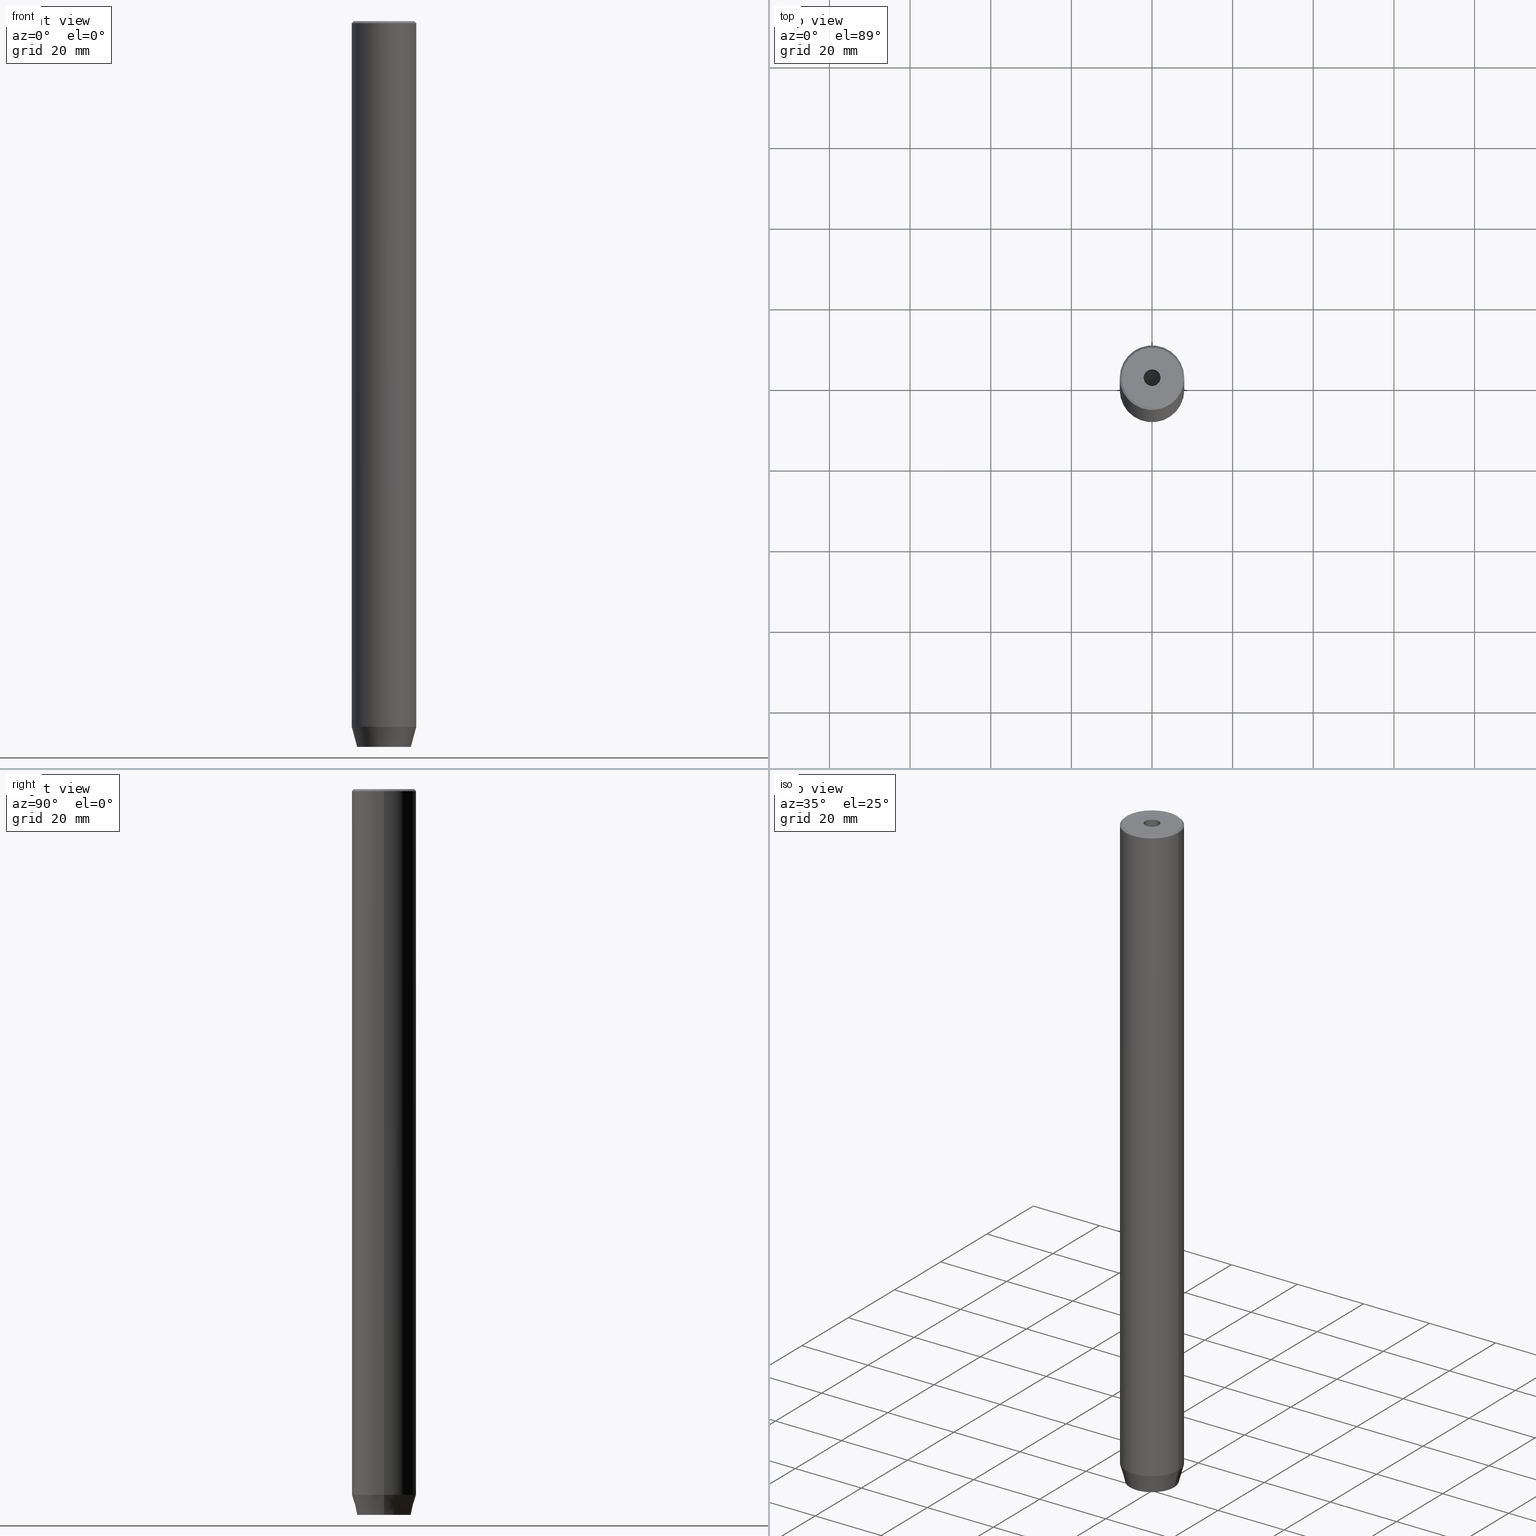
[diagram: canonical four-view strip — front | top / right | iso, engineering-drawing reading convention]
A machine part, canonical four-view strip (front | top / right | iso — engineering-drawing reading convention). The complete STEP part file that produces these views, byte-faithful:
ISO-10303-21;
HEADER;
FILE_DESCRIPTION (( 'STEP AP203' ),
    '1' );
FILE_NAME ('db60.STEP',
    '2024-01-02T20:38:27',
    ( '' ),
    ( '' ),
    'SwSTEP 2.0',
    'SolidWorks 2019',
    '' );
FILE_SCHEMA (( 'CONFIG_CONTROL_DESIGN' ));
ENDSEC;

DATA;
#1 = ORIENTED_EDGE ( 'NONE', *, *, #537, .T. ) ;
#2 = VERTEX_POINT ( 'NONE', #137 ) ;
#3 = DIRECTION ( 'NONE',  ( -0.2588190451025213501, 3.169619151431772337E-17, 0.9659258262890680902 ) ) ;
#4 = AXIS2_PLACEMENT_3D ( 'NONE', #390, #219, #258 ) ;
#5 = CC_DESIGN_PERSON_AND_ORGANIZATION_ASSIGNMENT ( #473, #478, ( #338 ) ) ;
#6 = CONICAL_SURFACE ( 'NONE', #482, 2.099999999999996092, 1.029744258676652091 ) ;
#7 = ORIENTED_EDGE ( 'NONE', *, *, #269, .T. ) ;
#8 = PLANE ( 'NONE',  #431 ) ;
#9 = CC_DESIGN_APPROVAL ( #287, ( #388 ) ) ;
#10 = CC_DESIGN_APPROVAL ( #450, ( #338 ) ) ;
#11 = DIRECTION ( 'NONE',  ( 1.000000000000000000, 0.000000000000000000, 0.000000000000000000 ) ) ;
#12 = ADVANCED_FACE ( 'NONE', ( #502 ), #364, .F. ) ;
#13 = ADVANCED_FACE ( 'NONE', ( #355 ), #20, .T. ) ;
#14 = ORIENTED_EDGE ( 'NONE', *, *, #191, .F. ) ;
#15 = ORIENTED_EDGE ( 'NONE', *, *, #537, .F. ) ;
#16 = DIRECTION ( 'NONE',  ( 0.000000000000000000, 0.000000000000000000, 1.000000000000000000 ) ) ;
#17 = CLOSED_SHELL ( 'NONE', ( #158, #414, #119, #506, #13, #222, #95, #371, #296, #146, #558, #303, #12, #41, #488, #517, #121, #351, #176 ) ) ;
#18 = VECTOR ( 'NONE', #236, 1000.000000000000000 ) ;
#19 = CONICAL_SURFACE ( 'NONE', #448, 8.000000000000000000, 0.2617993877991500740 ) ;
#20 = CYLINDRICAL_SURFACE ( 'NONE', #223, 8.000000000000000000 ) ;
#21 = VECTOR ( 'NONE', #337, 1000.000000000000000 ) ;
#22 = CARTESIAN_POINT ( 'NONE',  ( 3.000000000000000000, -1.732050807568876527, -180.0000000000000000 ) ) ;
#23 = ORIENTED_EDGE ( 'NONE', *, *, #566, .T. ) ;
#24 = LINE ( 'NONE', #379, #253 ) ;
#25 = CARTESIAN_POINT ( 'NONE',  ( -3.000000000000000888, 1.732050807568876527, -177.1999999999999886 ) ) ;
#26 = VERTEX_POINT ( 'NONE', #321 ) ;
#27 = DIRECTION ( 'NONE',  ( -1.000000000000000000, 0.000000000000000000, 0.000000000000000000 ) ) ;
#28 = ORIENTED_EDGE ( 'NONE', *, *, #245, .F. ) ;
#29 = VECTOR ( 'NONE', #100, 1000.000000000000000 ) ;
#30 = APPROVAL_PERSON_ORGANIZATION ( #471, #450, #304 ) ;
#31 = DIRECTION ( 'NONE',  ( 0.8571673007021111124, 0.000000000000000000, 0.5150380749100562650 ) ) ;
#32 = CARTESIAN_POINT ( 'NONE',  ( 1.500000000000000222, -2.598076211353315568, -180.0000000000000000 ) ) ;
#33 = CARTESIAN_POINT ( 'NONE',  ( -1.084202172485504434E-16, 3.464101615137754830, -177.1999999999999886 ) ) ;
#34 = EDGE_CURVE ( 'NONE', #434, #362, #504, .T. ) ;
#35 = LINE ( 'NONE', #410, #575 ) ;
#36 = ORIENTED_EDGE ( 'NONE', *, *, #577, .T. ) ;
#37 = CYLINDRICAL_SURFACE ( 'NONE', #354, 2.099999999999997424 ) ;
#38 = PERSON_AND_ORGANIZATION ( #266, #212 ) ;
#39 = EDGE_CURVE ( 'NONE', #92, #523, #436, .T. ) ;
#40 = FACE_BOUND ( 'NONE', #487, .T. ) ;
#41 = ADVANCED_FACE ( 'NONE', ( #324 ), #281, .F. ) ;
#42 = VERTEX_POINT ( 'NONE', #180 ) ;
#43 = APPROVAL_DATE_TIME ( #126, #450 ) ;
#44 = DIRECTION ( 'NONE',  ( 1.000000000000000000, 0.000000000000000000, 0.000000000000000000 ) ) ;
#45 = APPROVAL ( #522, 'NEUR�EN�' ) ;
#46 = VECTOR ( 'NONE', #90, 1000.000000000000000 ) ;
#47 = DIRECTION ( 'NONE',  ( -0.000000000000000000, -0.000000000000000000, 1.000000000000000000 ) ) ;
#48 = CARTESIAN_POINT ( 'NONE',  ( -3.000000000000000000, -1.732050807568877859, -177.1999999999999886 ) ) ;
#49 = DIRECTION ( 'NONE',  ( 1.000000000000000000, 0.000000000000000000, 0.000000000000000000 ) ) ;
#50 = ORIENTED_EDGE ( 'NONE', *, *, #343, .F. ) ;
#51 = CARTESIAN_POINT ( 'NONE',  ( 0.000000000000000000, 0.000000000000000000, -180.0000000000000000 ) ) ;
#52 = CIRCLE ( 'NONE', #77, 2.099999999999996092 ) ;
#53 = CARTESIAN_POINT ( 'NONE',  ( 0.000000000000000000, 0.000000000000000000, -180.0000000000000000 ) ) ;
#54 = EDGE_CURVE ( 'NONE', #544, #58, #417, .T. ) ;
#55 = EDGE_CURVE ( 'NONE', #407, #511, #231, .T. ) ;
#56 = ORIENTED_EDGE ( 'NONE', *, *, #540, .F. ) ;
#57 = APPLICATION_PROTOCOL_DEFINITION ( 'international standard', 'config_control_design', 1994, #519 ) ;
#58 = VERTEX_POINT ( 'NONE', #520 ) ;
#59 = EDGE_LOOP ( 'NONE', ( #243, #440 ) ) ;
#60 = DIRECTION ( 'NONE',  ( -0.8660254037844387076, -0.4999999999999999445, 0.000000000000000000 ) ) ;
#61 = VECTOR ( 'NONE', #353, 1000.000000000000114 ) ;
#62 = DIRECTION ( 'NONE',  ( 0.5000000000000001110, -0.8660254037844385966, 0.000000000000000000 ) ) ;
#63 = VERTEX_POINT ( 'NONE', #124 ) ;
#64 = CARTESIAN_POINT ( 'NONE',  ( 1.500000000000000222, 2.598076211353315568, -177.1999999999999886 ) ) ;
#65 = ORIENTED_EDGE ( 'NONE', *, *, #445, .F. ) ;
#66 = UNCERTAINTY_MEASURE_WITH_UNIT (LENGTH_MEASURE( 1.000000000000000082E-05 ), #241, 'distance_accuracy_value', 'NONE');
#67 = APPROVAL_PERSON_ORGANIZATION ( #38, #287, #129 ) ;
#68 = DIRECTION ( 'NONE',  ( -2.503857664561932376E-16, 1.000000000000000000, 0.000000000000000000 ) ) ;
#69 = ORIENTED_EDGE ( 'NONE', *, *, #157, .F. ) ;
#70 = DIRECTION ( 'NONE',  ( 1.000000000000000000, 0.000000000000000000, 0.000000000000000000 ) ) ;
#71 = DIRECTION ( 'NONE',  ( 0.5000000000000001110, 0.8660254037844385966, -0.000000000000000000 ) ) ;
#72 = EDGE_LOOP ( 'NONE', ( #512, #278, #571, #294 ) ) ;
#73 = AXIS2_PLACEMENT_3D ( 'NONE', #542, #586, #138 ) ;
#74 = CARTESIAN_POINT ( 'NONE',  ( 0.000000000000000000, 0.000000000000000000, -0.4999999999999657496 ) ) ;
#75 = COORDINATED_UNIVERSAL_TIME_OFFSET ( 1, 0, .AHEAD. ) ;
#76 = DIRECTION ( 'NONE',  ( 0.8660254037844385966, -0.5000000000000001110, 0.000000000000000000 ) ) ;
#77 = AXIS2_PLACEMENT_3D ( 'NONE', #497, #177, #11 ) ;
#78 = CC_DESIGN_PERSON_AND_ORGANIZATION_ASSIGNMENT ( #437, #206, ( #388 ) ) ;
#79 = PERSON_AND_ORGANIZATION_ROLE ( 'classification_officer' ) ;
#80 = EDGE_LOOP ( 'NONE', ( #115, #289, #322, #405 ) ) ;
#81 = FACE_OUTER_BOUND ( 'NONE', #427, .T. ) ;
#82 = LINE ( 'NONE', #263, #123 ) ;
#83 = CARTESIAN_POINT ( 'NONE',  ( -1.499999999999999556, 2.598076211353316012, -180.0000000000000000 ) ) ;
#84 = APPROVAL_STATUS ( 'not_yet_approved' ) ;
#85 = EDGE_CURVE ( 'NONE', #26, #299, #149, .T. ) ;
#86 = CARTESIAN_POINT ( 'NONE',  ( 1.500000000000000222, 2.598076211353315568, -180.0000000000000000 ) ) ;
#87 = CARTESIAN_POINT ( 'NONE',  ( -6.660254037844381969, 8.976816591066591237E-16, -180.0000000000000000 ) ) ;
#88 = COORDINATED_UNIVERSAL_TIME_OFFSET ( 1, 0, .AHEAD. ) ;
#89 = VERTEX_POINT ( 'NONE', #87 ) ;
#90 = DIRECTION ( 'NONE',  ( 0.000000000000000000, -1.000000000000000000, 0.000000000000000000 ) ) ;
#91 = DIRECTION ( 'NONE',  ( 0.8660254037844385966, -0.5000000000000001110, 0.000000000000000000 ) ) ;
#92 = VERTEX_POINT ( 'NONE', #216 ) ;
#93 = ORIENTED_EDGE ( 'NONE', *, *, #406, .F. ) ;
#94 = CARTESIAN_POINT ( 'NONE',  ( -8.000000000000000000, 9.797174393178825657E-16, -175.0000000000000000 ) ) ;
#95 = ADVANCED_FACE ( 'NONE', ( #509, #291 ), #562, .T. ) ;
#96 = LINE ( 'NONE', #230, #480 ) ;
#97 = EDGE_LOOP ( 'NONE', ( #401, #99, #288, #550 ) ) ;
#98 = ORIENTED_EDGE ( 'NONE', *, *, #343, .T. ) ;
#99 = ORIENTED_EDGE ( 'NONE', *, *, #85, .F. ) ;
#100 = DIRECTION ( 'NONE',  ( -0.000000000000000000, -0.000000000000000000, -1.000000000000000000 ) ) ;
#101 = ORIENTED_EDGE ( 'NONE', *, *, #467, .T. ) ;
#102 = EDGE_CURVE ( 'NONE', #110, #434, #244, .T. ) ;
#103 = DIRECTION ( 'NONE',  ( 0.7071067811865474617, 8.659560562354932858E-17, -0.7071067811865474617 ) ) ;
#104 = EDGE_CURVE ( 'NONE', #42, #26, #248, .T. ) ;
#105 = VECTOR ( 'NONE', #156, 1000.000000000000000 ) ;
#106 = VERTEX_POINT ( 'NONE', #325 ) ;
#107 =( NAMED_UNIT ( * ) PLANE_ANGLE_UNIT ( ) SI_UNIT ( $, .RADIAN. ) );
#108 = AXIS2_PLACEMENT_3D ( 'NONE', #505, #192, #331 ) ;
#109 = DIRECTION ( 'NONE',  ( 1.000000000000000000, 0.000000000000000000, 0.000000000000000000 ) ) ;
#110 = VERTEX_POINT ( 'NONE', #526 ) ;
#111 = DIRECTION ( 'NONE',  ( -0.000000000000000000, -0.000000000000000000, 1.000000000000000000 ) ) ;
#112 = AXIS2_PLACEMENT_3D ( 'NONE', #130, #210, #27 ) ;
#113 = EDGE_LOOP ( 'NONE', ( #285, #345, #508, #260 ) ) ;
#114 = PLANE ( 'NONE',  #190 ) ;
#115 = ORIENTED_EDGE ( 'NONE', *, *, #54, .T. ) ;
#116 = VECTOR ( 'NONE', #68, 1000.000000000000000 ) ;
#117 = LINE ( 'NONE', #381, #116 ) ;
#118 = CARTESIAN_POINT ( 'NONE',  ( 2.099999999999996092, 0.000000000000000000, -20.00000000000000000 ) ) ;
#119 = ADVANCED_FACE ( 'NONE', ( #249 ), #555, .T. ) ;
#120 = DIRECTION ( 'NONE',  ( -0.000000000000000000, -0.000000000000000000, -1.000000000000000000 ) ) ;
#121 = ADVANCED_FACE ( 'NONE', ( #200 ), #570, .T. ) ;
#122 = VECTOR ( 'NONE', #536, 999.9999999999998863 ) ;
#123 = VECTOR ( 'NONE', #133, 999.9999999999998863 ) ;
#124 = CARTESIAN_POINT ( 'NONE',  ( 2.099999999999998757, 0.000000000000000000, -1.990051048614449116E-16 ) ) ;
#125 = ORIENTED_EDGE ( 'NONE', *, *, #445, .T. ) ;
#126 = DATE_AND_TIME ( #214, #527 ) ;
#127 = EDGE_LOOP ( 'NONE', ( #7, #564, #494, #378 ) ) ;
#128 = CARTESIAN_POINT ( 'NONE',  ( -2.168404344971008868E-16, -3.464101615137754830, -177.1999999999999886 ) ) ;
#129 = APPROVAL_ROLE ( '' ) ;
#130 = CARTESIAN_POINT ( 'NONE',  ( 0.000000000000000000, 0.000000000000000000, 0.000000000000000000 ) ) ;
#131 = CARTESIAN_POINT ( 'NONE',  ( 0.000000000000000000, 0.000000000000000000, 0.000000000000000000 ) ) ;
#132 = CALENDAR_DATE ( 2024, 2, 1 ) ;
#133 = DIRECTION ( 'NONE',  ( 0.8660254037844387076, 0.4999999999999999445, 0.000000000000000000 ) ) ;
#134 = APPLICATION_CONTEXT ( 'configuration controlled 3d designs of mechanical parts and assemblies' ) ;
#135 = FACE_OUTER_BOUND ( 'NONE', #72, .T. ) ;
#136 = DIRECTION ( 'NONE',  ( -0.000000000000000000, -0.000000000000000000, -1.000000000000000000 ) ) ;
#137 = CARTESIAN_POINT ( 'NONE',  ( 3.000000000000000000, 1.732050807568876527, -180.0000000000000000 ) ) ;
#138 = DIRECTION ( 'NONE',  ( 1.000000000000000000, 0.000000000000000000, 0.000000000000000000 ) ) ;
#139 = EDGE_CURVE ( 'NONE', #319, #547, #470, .T. ) ;
#140 = CONICAL_SURFACE ( 'NONE', #464, 7.500000000000034639, 0.7853981633974482790 ) ;
#141 = AXIS2_PLACEMENT_3D ( 'NONE', #479, #584, #207 ) ;
#142 = CARTESIAN_POINT ( 'NONE',  ( 3.000000000000000000, 0.000000000000000000, -177.1999999999999886 ) ) ;
#143 = PRODUCT_RELATED_PRODUCT_CATEGORY ( 'detail', '', ( #213 ) ) ;
#144 = ORIENTED_EDGE ( 'NONE', *, *, #240, .F. ) ;
#145 = DIRECTION ( 'NONE',  ( -0.000000000000000000, -0.000000000000000000, -1.000000000000000000 ) ) ;
#146 = ADVANCED_FACE ( 'NONE', ( #155 ), #140, .T. ) ;
#147 = EDGE_CURVE ( 'NONE', #92, #407, #339, .T. ) ;
#148 = DIRECTION ( 'NONE',  ( 1.000000000000000000, 0.000000000000000000, 0.000000000000000000 ) ) ;
#149 = CIRCLE ( 'NONE', #308, 2.099999999999996092 ) ;
#150 = FACE_OUTER_BOUND ( 'NONE', #127, .T. ) ;
#151 = PLANE ( 'NONE',  #419 ) ;
#152 = ORIENTED_EDGE ( 'NONE', *, *, #583, .F. ) ;
#153 = DESIGN_CONTEXT ( 'detailed design', #134, 'design' ) ;
#154 = CARTESIAN_POINT ( 'NONE',  ( 0.000000000000000000, 0.000000000000000000, 0.000000000000000000 ) ) ;
#155 = FACE_OUTER_BOUND ( 'NONE', #529, .T. ) ;
#156 = DIRECTION ( 'NONE',  ( -0.8660254037844385966, -0.5000000000000001110, 0.000000000000000000 ) ) ;
#157 = EDGE_CURVE ( 'NONE', #63, #366, #208, .T. ) ;
#158 = ADVANCED_FACE ( 'NONE', ( #81 ), #37, .F. ) ;
#159 = VERTEX_POINT ( 'NONE', #33 ) ;
#160 = PERSON_AND_ORGANIZATION_ROLE ( 'design_owner' ) ;
#161 = DIRECTION ( 'NONE',  ( -1.000000000000000000, -2.503857664561933362E-16, 0.000000000000000000 ) ) ;
#162 = VECTOR ( 'NONE', #268, 1000.000000000000000 ) ;
#163 = DATE_AND_TIME ( #525, #264 ) ;
#164 = FACE_OUTER_BOUND ( 'NONE', #239, .T. ) ;
#165 = VECTOR ( 'NONE', #459, 1000.000000000000000 ) ;
#166 = CARTESIAN_POINT ( 'NONE',  ( 8.000000000000000000, 0.000000000000000000, 0.000000000000000000 ) ) ;
#167 = DIRECTION ( 'NONE',  ( -0.000000000000000000, -0.000000000000000000, 1.000000000000000000 ) ) ;
#168 = COORDINATED_UNIVERSAL_TIME_OFFSET ( 1, 0, .AHEAD. ) ;
#169 = ORIENTED_EDGE ( 'NONE', *, *, #54, .F. ) ;
#170 = DIRECTION ( 'NONE',  ( 1.000000000000000000, 0.000000000000000000, 0.000000000000000000 ) ) ;
#171 = AXIS2_PLACEMENT_3D ( 'NONE', #74, #194, #202 ) ;
#172 = AXIS2_PLACEMENT_3D ( 'NONE', #344, #252, #211 ) ;
#173 = ORIENTED_EDGE ( 'NONE', *, *, #147, .T. ) ;
#174 = LINE ( 'NONE', #395, #444 ) ;
#175 = CIRCLE ( 'NONE', #108, 2.099999999999998757 ) ;
#176 = ADVANCED_FACE ( 'NONE', ( #472 ), #580, .F. ) ;
#177 = DIRECTION ( 'NONE',  ( -0.000000000000000000, -0.000000000000000000, 1.000000000000000000 ) ) ;
#178 = ORIENTED_EDGE ( 'NONE', *, *, #370, .T. ) ;
#179 = FACE_OUTER_BOUND ( 'NONE', #409, .T. ) ;
#180 = CARTESIAN_POINT ( 'NONE',  ( -5.207640850796248781E-15, 0.000000000000000000, -21.26180729995787999 ) ) ;
#181 = AXIS2_PLACEMENT_3D ( 'NONE', #556, #422, #209 ) ;
#182 = VECTOR ( 'NONE', #302, 1000.000000000000000 ) ;
#183 = CARTESIAN_POINT ( 'NONE',  ( 3.000000000000000000, -1.732050807568876527, -177.1999999999999886 ) ) ;
#184 = EDGE_CURVE ( 'NONE', #416, #446, #433, .T. ) ;
#185 = DIRECTION ( 'NONE',  ( -0.000000000000000000, 0.000000000000000000, -1.000000000000000000 ) ) ;
#186 = CARTESIAN_POINT ( 'NONE',  ( -2.168404344971008868E-16, 3.464101615137754830, -180.0000000000000000 ) ) ;
#187 = DIRECTION ( 'NONE',  ( -0.000000000000000000, -0.000000000000000000, 1.000000000000000000 ) ) ;
#188 = ORIENTED_EDGE ( 'NONE', *, *, #184, .F. ) ;
#189 = ORIENTED_EDGE ( 'NONE', *, *, #310, .T. ) ;
#190 = AXIS2_PLACEMENT_3D ( 'NONE', #64, #71, #468 ) ;
#191 = EDGE_CURVE ( 'NONE', #110, #159, #82, .T. ) ;
#192 = DIRECTION ( 'NONE',  ( -0.000000000000000000, -0.000000000000000000, 1.000000000000000000 ) ) ;
#193 = ORIENTED_EDGE ( 'NONE', *, *, #332, .T. ) ;
#194 = DIRECTION ( 'NONE',  ( 0.000000000000000000, 0.000000000000000000, -1.000000000000000000 ) ) ;
#195 = AXIS2_PLACEMENT_3D ( 'NONE', #313, #403, #220 ) ;
#196 = AXIS2_PLACEMENT_3D ( 'NONE', #51, #453, #49 ) ;
#197 = EDGE_CURVE ( 'NONE', #547, #319, #292, .T. ) ;
#198 = EDGE_CURVE ( 'NONE', #523, #92, #411, .T. ) ;
#199 = VECTOR ( 'NONE', #91, 1000.000000000000000 ) ;
#200 = FACE_OUTER_BOUND ( 'NONE', #474, .T. ) ;
#201 = LOCAL_TIME ( 21, 38, 27.00000000000000000, #88 ) ;
#202 = DIRECTION ( 'NONE',  ( 1.000000000000000000, 0.000000000000000000, 0.000000000000000000 ) ) ;
#203 = PERSON_AND_ORGANIZATION_ROLE ( 'creator' ) ;
#204 = DIRECTION ( 'NONE',  ( 0.000000000000000000, 0.000000000000000000, -1.000000000000000000 ) ) ;
#205 = EDGE_LOOP ( 'NONE', ( #69, #548 ) ) ;
#206 = PERSON_AND_ORGANIZATION_ROLE ( 'creator' ) ;
#207 = DIRECTION ( 'NONE',  ( 1.000000000000000000, 0.000000000000000000, 0.000000000000000000 ) ) ;
#208 = CIRCLE ( 'NONE', #141, 2.099999999999998757 ) ;
#209 = DIRECTION ( 'NONE',  ( 1.000000000000000000, 0.000000000000000000, 0.000000000000000000 ) ) ;
#210 = DIRECTION ( 'NONE',  ( 0.000000000000000000, 0.000000000000000000, -1.000000000000000000 ) ) ;
#211 = DIRECTION ( 'NONE',  ( 1.000000000000000000, 0.000000000000000000, 0.000000000000000000 ) ) ;
#212 = ORGANIZATION ( 'NEUR�EN�', 'NEUR�EN�', '' ) ;
#213 = PRODUCT ( 'db60', 'db60', '', ( #557 ) ) ;
#214 = CALENDAR_DATE ( 2024, 2, 1 ) ;
#215 = CARTESIAN_POINT ( 'NONE',  ( 0.000000000000000000, 6.660254037844381969, -180.0000000000000000 ) ) ;
#216 = CARTESIAN_POINT ( 'NONE',  ( -7.500000000000034639, 0.000000000000000000, 0.000000000000000000 ) ) ;
#217 = VERTEX_POINT ( 'NONE', #438 ) ;
#218 = DATE_TIME_ROLE ( 'classification_date' ) ;
#219 = DIRECTION ( 'NONE',  ( -0.000000000000000000, -0.000000000000000000, 1.000000000000000000 ) ) ;
#220 = DIRECTION ( 'NONE',  ( 1.000000000000000000, 0.000000000000000000, 0.000000000000000000 ) ) ;
#221 = ORIENTED_EDGE ( 'NONE', *, *, #430, .T. ) ;
#222 = ADVANCED_FACE ( 'NONE', ( #40, #164 ), #528, .T. ) ;
#223 = AXIS2_PLACEMENT_3D ( 'NONE', #282, #187, #109 ) ;
#224 = EDGE_CURVE ( 'NONE', #547, #407, #347, .T. ) ;
#225 = DIRECTION ( 'NONE',  ( 0.000000000000000000, 0.000000000000000000, -1.000000000000000000 ) ) ;
#226 = CARTESIAN_POINT ( 'NONE',  ( 3.000000000000000000, 1.732050807568876527, -177.1999999999999886 ) ) ;
#227 = VECTOR ( 'NONE', #103, 1000.000000000000114 ) ;
#228 = EDGE_LOOP ( 'NONE', ( #449, #334, #14, #341 ) ) ;
#229 = CYLINDRICAL_SURFACE ( 'NONE', #73, 8.000000000000000000 ) ;
#230 = CARTESIAN_POINT ( 'NONE',  ( -2.099999999999997424, 2.571758278209438506E-16, 0.000000000000000000 ) ) ;
#231 = CIRCLE ( 'NONE', #171, 8.000000000000000000 ) ;
#232 = AXIS2_PLACEMENT_3D ( 'NONE', #317, #270, #452 ) ;
#233 = CARTESIAN_POINT ( 'NONE',  ( 0.000000000000000000, 0.000000000000000000, -20.00000000000000000 ) ) ;
#234 =( GEOMETRIC_REPRESENTATION_CONTEXT ( 3 ) GLOBAL_UNCERTAINTY_ASSIGNED_CONTEXT ( ( #66 ) ) GLOBAL_UNIT_ASSIGNED_CONTEXT ( ( #241, #107, #428 ) ) REPRESENTATION_CONTEXT ( 'NONE', 'WORKASPACE' ) );
#235 = EDGE_LOOP ( 'NONE', ( #393, #316, #424, #15 ) ) ;
#236 = DIRECTION ( 'NONE',  ( -0.8660254037844385966, 0.5000000000000001110, 0.000000000000000000 ) ) ;
#237 = ORIENTED_EDGE ( 'NONE', *, *, #34, .F. ) ;
#238 = CARTESIAN_POINT ( 'NONE',  ( 2.099999999999997424, 0.000000000000000000, 0.000000000000000000 ) ) ;
#239 = EDGE_LOOP ( 'NONE', ( #93, #50 ) ) ;
#240 = EDGE_CURVE ( 'NONE', #511, #407, #565, .T. ) ;
#241 =( LENGTH_UNIT ( ) NAMED_UNIT ( * ) SI_UNIT ( .MILLI., .METRE. ) );
#242 = CARTESIAN_POINT ( 'NONE',  ( 8.000000000000000000, 0.000000000000000000, -0.4999999999999657496 ) ) ;
#243 = ORIENTED_EDGE ( 'NONE', *, *, #39, .T. ) ;
#244 = LINE ( 'NONE', #25, #574 ) ;
#245 = EDGE_CURVE ( 'NONE', #446, #544, #174, .T. ) ;
#246 = ORIENTED_EDGE ( 'NONE', *, *, #387, .F. ) ;
#247 = CARTESIAN_POINT ( 'NONE',  ( -1.499999999999999556, 2.598076211353316012, -177.1999999999999886 ) ) ;
#248 = LINE ( 'NONE', #118, #259 ) ;
#249 = FACE_OUTER_BOUND ( 'NONE', #461, .T. ) ;
#250 = EDGE_LOOP ( 'NONE', ( #193, #306, #551, #189 ) ) ;
#251 = CC_DESIGN_PERSON_AND_ORGANIZATION_ASSIGNMENT ( #262, #203, ( #338 ) ) ;
#252 = DIRECTION ( 'NONE',  ( 0.000000000000000000, 0.000000000000000000, -1.000000000000000000 ) ) ;
#253 = VECTOR ( 'NONE', #297, 1000.000000000000000 ) ;
#254 = CARTESIAN_POINT ( 'NONE',  ( 0.000000000000000000, 0.000000000000000000, -175.0000000000000000 ) ) ;
#255 = CC_DESIGN_DATE_AND_TIME_ASSIGNMENT ( #572, #218, ( #348 ) ) ;
#256 = ORIENTED_EDGE ( 'NONE', *, *, #198, .F. ) ;
#257 = APPROVAL_STATUS ( 'not_yet_approved' ) ;
#258 = DIRECTION ( 'NONE',  ( 1.000000000000000000, 0.000000000000000000, 0.000000000000000000 ) ) ;
#259 = VECTOR ( 'NONE', #31, 1000.000000000000000 ) ;
#260 = ORIENTED_EDGE ( 'NONE', *, *, #240, .T. ) ;
#261 = AXIS2_PLACEMENT_3D ( 'NONE', #541, #397, #170 ) ;
#262 = PERSON_AND_ORGANIZATION ( #266, #212 ) ;
#263 = CARTESIAN_POINT ( 'NONE',  ( -1.499999999999999556, 2.598076211353316012, -177.1999999999999886 ) ) ;
#264 = LOCAL_TIME ( 21, 38, 27.00000000000000000, #168 ) ;
#265 = LOCAL_TIME ( 21, 38, 27.00000000000000000, #346 ) ;
#266 = PERSON ( 'NEUR�EN�', 'NEUR�EN�', 'NEUR�EN�', ('NEUR�EN�'), ('NEUR�EN�'), ('NEUR�EN�') ) ;
#267 = EDGE_CURVE ( 'NONE', #319, #511, #573, .T. ) ;
#268 = DIRECTION ( 'NONE',  ( -0.000000000000000000, -0.000000000000000000, 1.000000000000000000 ) ) ;
#269 = EDGE_CURVE ( 'NONE', #362, #2, #532, .T. ) ;
#270 = DIRECTION ( 'NONE',  ( -0.000000000000000000, -0.000000000000000000, 1.000000000000000000 ) ) ;
#271 = ORIENTED_EDGE ( 'NONE', *, *, #430, .F. ) ;
#272 = EDGE_LOOP ( 'NONE', ( #277, #380, #295 ) ) ;
#273 = VECTOR ( 'NONE', #349, 1000.000000000000000 ) ;
#274 = DIRECTION ( 'NONE',  ( 1.000000000000000000, 0.000000000000000000, 0.000000000000000000 ) ) ;
#275 = VECTOR ( 'NONE', #549, 1000.000000000000000 ) ;
#276 = CARTESIAN_POINT ( 'NONE',  ( -1.500000000000000666, -2.598076211353316456, -180.0000000000000000 ) ) ;
#277 = ORIENTED_EDGE ( 'NONE', *, *, #311, .F. ) ;
#278 = ORIENTED_EDGE ( 'NONE', *, *, #102, .F. ) ;
#279 = ORIENTED_EDGE ( 'NONE', *, *, #147, .F. ) ;
#280 = FACE_OUTER_BOUND ( 'NONE', #451, .T. ) ;
#281 = PLANE ( 'NONE',  #533 ) ;
#282 = CARTESIAN_POINT ( 'NONE',  ( 0.000000000000000000, 0.000000000000000000, 0.000000000000000000 ) ) ;
#283 = LINE ( 'NONE', #276, #18 ) ;
#284 = VERTEX_POINT ( 'NONE', #307 ) ;
#285 = ORIENTED_EDGE ( 'NONE', *, *, #224, .F. ) ;
#286 = CARTESIAN_POINT ( 'NONE',  ( 8.000000000000000000, 0.000000000000000000, -175.0000000000000000 ) ) ;
#287 = APPROVAL ( #257, 'NEUR�EN�' ) ;
#288 = ORIENTED_EDGE ( 'NONE', *, *, #540, .T. ) ;
#289 = ORIENTED_EDGE ( 'NONE', *, *, #310, .F. ) ;
#290 = FACE_OUTER_BOUND ( 'NONE', #228, .T. ) ;
#291 = FACE_OUTER_BOUND ( 'NONE', #59, .T. ) ;
#292 = CIRCLE ( 'NONE', #383, 8.000000000000000000 ) ;
#293 = LINE ( 'NONE', #286, #21 ) ;
#294 = ORIENTED_EDGE ( 'NONE', *, *, #469, .T. ) ;
#295 = ORIENTED_EDGE ( 'NONE', *, *, #85, .T. ) ;
#296 = ADVANCED_FACE ( 'NONE', ( #439 ), #501, .T. ) ;
#297 = DIRECTION ( 'NONE',  ( -2.503857664561932376E-16, 1.000000000000000000, 0.000000000000000000 ) ) ;
#298 = LINE ( 'NONE', #514, #105 ) ;
#299 = VERTEX_POINT ( 'NONE', #535 ) ;
#300 = AXIS2_PLACEMENT_3D ( 'NONE', #215, #204, #399 ) ;
#301 = APPLICATION_PROTOCOL_DEFINITION ( 'international standard', 'config_control_design', 1994, #134 ) ;
#302 = DIRECTION ( 'NONE',  ( -0.000000000000000000, -0.000000000000000000, -1.000000000000000000 ) ) ;
#303 = ADVANCED_FACE ( 'NONE', ( #135 ), #358, .F. ) ;
#304 = APPROVAL_ROLE ( '' ) ;
#305 = DIRECTION ( 'NONE',  ( -0.000000000000000000, -0.000000000000000000, 1.000000000000000000 ) ) ;
#306 = ORIENTED_EDGE ( 'NONE', *, *, #469, .F. ) ;
#307 = CARTESIAN_POINT ( 'NONE',  ( -2.168404344971008868E-16, -3.464101615137754830, -177.1999999999999886 ) ) ;
#308 = AXIS2_PLACEMENT_3D ( 'NONE', #356, #167, #350 ) ;
#309 = AXIS2_PLACEMENT_3D ( 'NONE', #53, #47, #148 ) ;
#310 = EDGE_CURVE ( 'NONE', #284, #58, #484, .T. ) ;
#311 = EDGE_CURVE ( 'NONE', #42, #299, #35, .T. ) ;
#312 = CARTESIAN_POINT ( 'NONE',  ( -3.000000000000000444, -7.511572993685800087E-16, -177.1999999999999886 ) ) ;
#313 = CARTESIAN_POINT ( 'NONE',  ( 0.000000000000000000, 0.000000000000000000, 0.000000000000000000 ) ) ;
#314 = LOCAL_TIME ( 21, 38, 27.00000000000000000, #75 ) ;
#315 = CARTESIAN_POINT ( 'NONE',  ( 3.000000000000000000, 1.732050807568876527, -177.1999999999999886 ) ) ;
#316 = ORIENTED_EDGE ( 'NONE', *, *, #387, .T. ) ;
#317 = CARTESIAN_POINT ( 'NONE',  ( 0.000000000000000000, 0.000000000000000000, -20.00000000000000000 ) ) ;
#318 = AXIS2_PLACEMENT_3D ( 'NONE', #457, #423, #70 ) ;
#319 = VERTEX_POINT ( 'NONE', #359 ) ;
#320 = DIRECTION ( 'NONE',  ( 1.000000000000000000, 0.000000000000000000, -0.000000000000000000 ) ) ;
#321 = CARTESIAN_POINT ( 'NONE',  ( 2.099999999999996092, 0.000000000000000000, -20.00000000000000000 ) ) ;
#322 = ORIENTED_EDGE ( 'NONE', *, *, #515, .F. ) ;
#323 = CARTESIAN_POINT ( 'NONE',  ( 7.500000000000034639, 9.184850993605191332E-16, 0.000000000000000000 ) ) ;
#324 = FACE_OUTER_BOUND ( 'NONE', #80, .T. ) ;
#325 = CARTESIAN_POINT ( 'NONE',  ( -3.000000000000000000, -1.732050807568877859, -177.1999999999999886 ) ) ;
#326 = CARTESIAN_POINT ( 'NONE',  ( -3.000000000000000888, 1.732050807568876527, -180.0000000000000000 ) ) ;
#327 = VECTOR ( 'NONE', #3, 1000.000000000000000 ) ;
#328 = VERTEX_POINT ( 'NONE', #495 ) ;
#329 = CC_DESIGN_DATE_AND_TIME_ASSIGNMENT ( #432, #396, ( #388 ) ) ;
#330 = ORIENTED_EDGE ( 'NONE', *, *, #267, .F. ) ;
#331 = DIRECTION ( 'NONE',  ( 1.000000000000000000, 0.000000000000000000, 0.000000000000000000 ) ) ;
#332 = EDGE_CURVE ( 'NONE', #58, #328, #283, .T. ) ;
#333 = CC_DESIGN_APPROVAL ( #45, ( #348 ) ) ;
#334 = ORIENTED_EDGE ( 'NONE', *, *, #485, .F. ) ;
#335 = CARTESIAN_POINT ( 'NONE',  ( -8.000000000000000000, 9.797174393178825657E-16, -175.0000000000000000 ) ) ;
#336 = DIRECTION ( 'NONE',  ( -0.000000000000000000, -0.000000000000000000, 1.000000000000000000 ) ) ;
#337 = DIRECTION ( 'NONE',  ( 0.2588190451025213501, 0.000000000000000000, 0.9659258262890680902 ) ) ;
#338 = PRODUCT_DEFINITION_FORMATION_WITH_SPECIFIED_SOURCE ( 'LIBOVOLN�', '', #213, .NOT_KNOWN. ) ;
#339 = LINE ( 'NONE', #477, #61 ) ;
#340 = AXIS2_PLACEMENT_3D ( 'NONE', #360, #489, #543 ) ;
#341 = ORIENTED_EDGE ( 'NONE', *, *, #102, .T. ) ;
#342 = PERSON_AND_ORGANIZATION ( #266, #212 ) ;
#343 = EDGE_CURVE ( 'NONE', #89, #217, #510, .T. ) ;
#344 = CARTESIAN_POINT ( 'NONE',  ( 0.000000000000000000, 0.000000000000000000, -0.4999999999999657496 ) ) ;
#345 = ORIENTED_EDGE ( 'NONE', *, *, #197, .T. ) ;
#346 = COORDINATED_UNIVERSAL_TIME_OFFSET ( 1, 0, .AHEAD. ) ;
#347 = LINE ( 'NONE', #435, #273 ) ;
#348 = SECURITY_CLASSIFICATION ( '', '', #389 ) ;
#349 = DIRECTION ( 'NONE',  ( -0.000000000000000000, -0.000000000000000000, 1.000000000000000000 ) ) ;
#350 = DIRECTION ( 'NONE',  ( 1.000000000000000000, 0.000000000000000000, 0.000000000000000000 ) ) ;
#351 = ADVANCED_FACE ( 'NONE', ( #402 ), #521, .F. ) ;
#352 = APPROVAL_DATE_TIME ( #391, #45 ) ;
#353 = DIRECTION ( 'NONE',  ( -0.7071067811865474617, 0.000000000000000000, -0.7071067811865474617 ) ) ;
#354 = AXIS2_PLACEMENT_3D ( 'NONE', #581, #442, #392 ) ;
#355 = FACE_OUTER_BOUND ( 'NONE', #518, .T. ) ;
#356 = CARTESIAN_POINT ( 'NONE',  ( 0.000000000000000000, 0.000000000000000000, -20.00000000000000000 ) ) ;
#357 = ORIENTED_EDGE ( 'NONE', *, *, #413, .F. ) ;
#358 = PLANE ( 'NONE',  #365 ) ;
#359 = CARTESIAN_POINT ( 'NONE',  ( 8.000000000000000000, 0.000000000000000000, -175.0000000000000000 ) ) ;
#360 = CARTESIAN_POINT ( 'NONE',  ( -1.500000000000000666, -2.598076211353316456, -177.1999999999999886 ) ) ;
#361 = ORIENTED_EDGE ( 'NONE', *, *, #55, .T. ) ;
#362 = VERTEX_POINT ( 'NONE', #186 ) ;
#363 = CARTESIAN_POINT ( 'NONE',  ( -8.000000000000000000, 9.797174393178825657E-16, -0.4999999999999657496 ) ) ;
#364 = PLANE ( 'NONE',  #340 ) ;
#365 = AXIS2_PLACEMENT_3D ( 'NONE', #312, #161, #524 ) ;
#366 = VERTEX_POINT ( 'NONE', #499 ) ;
#367 = CARTESIAN_POINT ( 'NONE',  ( 0.000000000000000000, 0.000000000000000000, 0.000000000000000000 ) ) ;
#368 = CARTESIAN_POINT ( 'NONE',  ( 3.000000000000000000, 0.000000000000000000, -180.0000000000000000 ) ) ;
#369 = FACE_OUTER_BOUND ( 'NONE', #113, .T. ) ;
#370 = EDGE_CURVE ( 'NONE', #299, #366, #96, .T. ) ;
#371 = ADVANCED_FACE ( 'NONE', ( #369 ), #229, .T. ) ;
#372 = LINE ( 'NONE', #368, #456 ) ;
#373 = VECTOR ( 'NONE', #513, 1000.000000000000000 ) ;
#374 = ORIENTED_EDGE ( 'NONE', *, *, #311, .T. ) ;
#375 = ORIENTED_EDGE ( 'NONE', *, *, #224, .T. ) ;
#376 = DIRECTION ( 'NONE',  ( 1.000000000000000000, 0.000000000000000000, 0.000000000000000000 ) ) ;
#377 = ORIENTED_EDGE ( 'NONE', *, *, #413, .T. ) ;
#378 = ORIENTED_EDGE ( 'NONE', *, *, #485, .T. ) ;
#379 = CARTESIAN_POINT ( 'NONE',  ( -3.000000000000000444, -7.511572993685800087E-16, -180.0000000000000000 ) ) ;
#380 = ORIENTED_EDGE ( 'NONE', *, *, #104, .T. ) ;
#381 = CARTESIAN_POINT ( 'NONE',  ( -3.000000000000000444, -7.511572993685800087E-16, -177.1999999999999886 ) ) ;
#382 = ORIENTED_EDGE ( 'NONE', *, *, #515, .T. ) ;
#383 = AXIS2_PLACEMENT_3D ( 'NONE', #254, #476, #44 ) ;
#384 = CARTESIAN_POINT ( 'NONE',  ( -1.500000000000000666, -2.598076211353316456, -177.1999999999999886 ) ) ;
#385 = ORIENTED_EDGE ( 'NONE', *, *, #104, .F. ) ;
#386 = FACE_OUTER_BOUND ( 'NONE', #235, .T. ) ;
#387 = EDGE_CURVE ( 'NONE', #89, #547, #415, .T. ) ;
#388 = PRODUCT_DEFINITION ( 'NEZN�M�', '', #338, #153 ) ;
#389 = SECURITY_CLASSIFICATION_LEVEL ( 'unclassified' ) ;
#390 = CARTESIAN_POINT ( 'NONE',  ( 0.000000000000000000, 0.000000000000000000, 0.000000000000000000 ) ) ;
#391 = DATE_AND_TIME ( #530, #314 ) ;
#392 = DIRECTION ( 'NONE',  ( 1.000000000000000000, 0.000000000000000000, 0.000000000000000000 ) ) ;
#393 = ORIENTED_EDGE ( 'NONE', *, *, #406, .T. ) ;
#394 = AXIS2_PLACEMENT_3D ( 'NONE', #154, #16, #376 ) ;
#395 = CARTESIAN_POINT ( 'NONE',  ( 3.000000000000000000, -1.732050807568876527, -177.1999999999999886 ) ) ;
#396 = DATE_TIME_ROLE ( 'creation_date' ) ;
#397 = DIRECTION ( 'NONE',  ( -0.000000000000000000, -0.000000000000000000, 1.000000000000000000 ) ) ;
#398 = PRODUCT_DEFINITION_SHAPE ( 'NONE', 'NONE',  #388 ) ;
#399 = DIRECTION ( 'NONE',  ( -1.000000000000000000, 0.000000000000000000, -0.000000000000000000 ) ) ;
#400 = CIRCLE ( 'NONE', #309, 6.660254037844381969 ) ;
#401 = ORIENTED_EDGE ( 'NONE', *, *, #370, .F. ) ;
#402 = FACE_OUTER_BOUND ( 'NONE', #272, .T. ) ;
#403 = DIRECTION ( 'NONE',  ( -0.000000000000000000, -0.000000000000000000, 1.000000000000000000 ) ) ;
#404 = EDGE_LOOP ( 'NONE', ( #246, #98, #1, #458 ) ) ;
#405 = ORIENTED_EDGE ( 'NONE', *, *, #245, .T. ) ;
#406 = EDGE_CURVE ( 'NONE', #217, #89, #400, .T. ) ;
#407 = VERTEX_POINT ( 'NONE', #363 ) ;
#408 = LINE ( 'NONE', #323, #227 ) ;
#409 = EDGE_LOOP ( 'NONE', ( #385, #374, #377 ) ) ;
#410 = CARTESIAN_POINT ( 'NONE',  ( -2.099999999999996092, 2.571758278209436534E-16, -20.00000000000000000 ) ) ;
#411 = CIRCLE ( 'NONE', #4, 7.500000000000034639 ) ;
#412 = DIRECTION ( 'NONE',  ( 0.000000000000000000, -1.000000000000000000, 0.000000000000000000 ) ) ;
#413 = EDGE_CURVE ( 'NONE', #299, #26, #52, .T. ) ;
#414 = ADVANCED_FACE ( 'NONE', ( #179 ), #6, .F. ) ;
#415 = LINE ( 'NONE', #94, #327 ) ;
#416 = VERTEX_POINT ( 'NONE', #226 ) ;
#417 = LINE ( 'NONE', #32, #373 ) ;
#418 = AXIS2_PLACEMENT_3D ( 'NONE', #131, #305, #481 ) ;
#419 = AXIS2_PLACEMENT_3D ( 'NONE', #247, #462, #60 ) ;
#420 = VECTOR ( 'NONE', #111, 1000.000000000000000 ) ;
#421 = CARTESIAN_POINT ( 'NONE',  ( 7.500000000000034639, 9.491012693392009481E-16, 0.000000000000000000 ) ) ;
#422 = DIRECTION ( 'NONE',  ( 0.000000000000000000, -0.000000000000000000, 1.000000000000000000 ) ) ;
#423 = DIRECTION ( 'NONE',  ( -0.000000000000000000, -0.000000000000000000, 1.000000000000000000 ) ) ;
#424 = ORIENTED_EDGE ( 'NONE', *, *, #139, .F. ) ;
#425 = ADVANCED_BREP_SHAPE_REPRESENTATION ( 'db60', ( #498, #394 ), #234 ) ;
#426 = DIRECTION ( 'NONE',  ( 1.000000000000000000, 0.000000000000000000, 0.000000000000000000 ) ) ;
#427 = EDGE_LOOP ( 'NONE', ( #357, #178, #23, #56 ) ) ;
#428 =( NAMED_UNIT ( * ) SI_UNIT ( $, .STERADIAN. ) SOLID_ANGLE_UNIT ( ) );
#429 = CC_DESIGN_PERSON_AND_ORGANIZATION_ASSIGNMENT ( #559, #160, ( #213 ) ) ;
#430 = EDGE_CURVE ( 'NONE', #2, #544, #372, .T. ) ;
#431 = AXIS2_PLACEMENT_3D ( 'NONE', #142, #320, #185 ) ;
#432 = DATE_AND_TIME ( #579, #201 ) ;
#433 = LINE ( 'NONE', #578, #46 ) ;
#434 = VERTEX_POINT ( 'NONE', #326 ) ;
#435 = CARTESIAN_POINT ( 'NONE',  ( -8.000000000000000000, 9.797174393178825657E-16, 0.000000000000000000 ) ) ;
#436 = CIRCLE ( 'NONE', #195, 7.500000000000034639 ) ;
#437 = PERSON_AND_ORGANIZATION ( #266, #212 ) ;
#438 = CARTESIAN_POINT ( 'NONE',  ( 6.660254037844381969, 0.000000000000000000, -180.0000000000000000 ) ) ;
#439 = FACE_OUTER_BOUND ( 'NONE', #404, .T. ) ;
#440 = ORIENTED_EDGE ( 'NONE', *, *, #198, .T. ) ;
#441 = COORDINATED_UNIVERSAL_TIME_OFFSET ( 1, 0, .AHEAD. ) ;
#442 = DIRECTION ( 'NONE',  ( -0.000000000000000000, -0.000000000000000000, 1.000000000000000000 ) ) ;
#443 = LINE ( 'NONE', #48, #538 ) ;
#444 = VECTOR ( 'NONE', #136, 1000.000000000000000 ) ;
#445 = EDGE_CURVE ( 'NONE', #523, #511, #408, .T. ) ;
#446 = VERTEX_POINT ( 'NONE', #183 ) ;
#447 = LINE ( 'NONE', #486, #199 ) ;
#448 = AXIS2_PLACEMENT_3D ( 'NONE', #567, #336, #426 ) ;
#449 = ORIENTED_EDGE ( 'NONE', *, *, #34, .T. ) ;
#450 = APPROVAL ( #84, 'NEUR�EN�' ) ;
#451 = EDGE_LOOP ( 'NONE', ( #221, #28, #188, #466 ) ) ;
#452 = DIRECTION ( 'NONE',  ( 1.000000000000000000, 0.000000000000000000, 0.000000000000000000 ) ) ;
#453 = DIRECTION ( 'NONE',  ( -0.000000000000000000, -0.000000000000000000, 1.000000000000000000 ) ) ;
#454 = EDGE_CURVE ( 'NONE', #416, #2, #554, .T. ) ;
#455 = DIRECTION ( 'NONE',  ( -0.000000000000000000, -0.000000000000000000, 1.000000000000000000 ) ) ;
#456 = VECTOR ( 'NONE', #412, 1000.000000000000000 ) ;
#457 = CARTESIAN_POINT ( 'NONE',  ( 0.000000000000000000, 0.000000000000000000, -175.0000000000000000 ) ) ;
#458 = ORIENTED_EDGE ( 'NONE', *, *, #197, .F. ) ;
#459 = DIRECTION ( 'NONE',  ( -0.8660254037844385966, 0.5000000000000001110, 0.000000000000000000 ) ) ;
#460 = DIRECTION ( 'NONE',  ( 0.8660254037844385966, 0.5000000000000001110, 0.000000000000000000 ) ) ;
#461 = EDGE_LOOP ( 'NONE', ( #256, #125, #561, #279 ) ) ;
#462 = DIRECTION ( 'NONE',  ( -0.4999999999999999445, 0.8660254037844387076, 0.000000000000000000 ) ) ;
#463 = CARTESIAN_POINT ( 'NONE',  ( 1.500000000000000222, -2.598076211353315568, -177.1999999999999886 ) ) ;
#464 = AXIS2_PLACEMENT_3D ( 'NONE', #367, #225, #516 ) ;
#465 = LINE ( 'NONE', #238, #420 ) ;
#466 = ORIENTED_EDGE ( 'NONE', *, *, #454, .T. ) ;
#467 = EDGE_CURVE ( 'NONE', #159, #416, #447, .T. ) ;
#468 = DIRECTION ( 'NONE',  ( -0.8660254037844385966, 0.5000000000000001110, 0.000000000000000000 ) ) ;
#469 = EDGE_CURVE ( 'NONE', #106, #328, #443, .T. ) ;
#470 = CIRCLE ( 'NONE', #318, 8.000000000000000000 ) ;
#471 = PERSON_AND_ORGANIZATION ( #266, #212 ) ;
#472 = FACE_OUTER_BOUND ( 'NONE', #97, .T. ) ;
#473 = PERSON_AND_ORGANIZATION ( #266, #212 ) ;
#474 = EDGE_LOOP ( 'NONE', ( #546, #101, #585, #382, #539, #36 ) ) ;
#475 = CC_DESIGN_SECURITY_CLASSIFICATION ( #348, ( #338 ) ) ;
#476 = DIRECTION ( 'NONE',  ( -0.000000000000000000, -0.000000000000000000, 1.000000000000000000 ) ) ;
#477 = CARTESIAN_POINT ( 'NONE',  ( -7.500000000000034639, 0.000000000000000000, 0.000000000000000000 ) ) ;
#478 = PERSON_AND_ORGANIZATION_ROLE ( 'design_supplier' ) ;
#479 = CARTESIAN_POINT ( 'NONE',  ( 0.000000000000000000, 0.000000000000000000, -1.990051048614449116E-16 ) ) ;
#480 = VECTOR ( 'NONE', #455, 1000.000000000000000 ) ;
#481 = DIRECTION ( 'NONE',  ( 1.000000000000000000, 0.000000000000000000, 0.000000000000000000 ) ) ;
#482 = AXIS2_PLACEMENT_3D ( 'NONE', #233, #491, #274 ) ;
#483 = APPROVAL_DATE_TIME ( #163, #287 ) ;
#484 = LINE ( 'NONE', #128, #182 ) ;
#485 = EDGE_CURVE ( 'NONE', #159, #362, #552, .T. ) ;
#486 = CARTESIAN_POINT ( 'NONE',  ( 1.500000000000000222, 2.598076211353315568, -177.1999999999999886 ) ) ;
#487 = EDGE_LOOP ( 'NONE', ( #237, #152, #531, #169, #271, #568 ) ) ;
#488 = ADVANCED_FACE ( 'NONE', ( #280 ), #8, .F. ) ;
#489 = DIRECTION ( 'NONE',  ( -0.5000000000000001110, -0.8660254037844385966, 0.000000000000000000 ) ) ;
#490 = AXIS2_PLACEMENT_3D ( 'NONE', #553, #500, #563 ) ;
#491 = DIRECTION ( 'NONE',  ( -0.000000000000000000, -0.000000000000000000, 1.000000000000000000 ) ) ;
#492 = VECTOR ( 'NONE', #76, 1000.000000000000000 ) ;
#493 = CC_DESIGN_PERSON_AND_ORGANIZATION_ASSIGNMENT ( #576, #79, ( #348 ) ) ;
#494 = ORIENTED_EDGE ( 'NONE', *, *, #467, .F. ) ;
#495 = CARTESIAN_POINT ( 'NONE',  ( -3.000000000000000000, -1.732050807568877859, -180.0000000000000000 ) ) ;
#496 = APPROVAL_PERSON_ORGANIZATION ( #342, #45, #569 ) ;
#497 = CARTESIAN_POINT ( 'NONE',  ( 0.000000000000000000, 0.000000000000000000, -20.00000000000000000 ) ) ;
#498 = MANIFOLD_SOLID_BREP ( 'Vrt�k z�vitn�ku pro M5 z�vit1', #17 ) ;
#499 = CARTESIAN_POINT ( 'NONE',  ( -2.099999999999998757, 2.571758278209440478E-16, -1.990051048614449116E-16 ) ) ;
#500 = DIRECTION ( 'NONE',  ( 0.000000000000000000, 0.000000000000000000, -1.000000000000000000 ) ) ;
#501 = CONICAL_SURFACE ( 'NONE', #261, 8.000000000000000000, 0.2617993877991500740 ) ;
#502 = FACE_OUTER_BOUND ( 'NONE', #250, .T. ) ;
#503 = LINE ( 'NONE', #384, #165 ) ;
#504 = LINE ( 'NONE', #83, #122 ) ;
#505 = CARTESIAN_POINT ( 'NONE',  ( 0.000000000000000000, 0.000000000000000000, -1.990051048614449116E-16 ) ) ;
#506 = ADVANCED_FACE ( 'NONE', ( #386 ), #19, .T. ) ;
#507 = ORIENTED_EDGE ( 'NONE', *, *, #39, .F. ) ;
#508 = ORIENTED_EDGE ( 'NONE', *, *, #267, .T. ) ;
#509 = FACE_BOUND ( 'NONE', #205, .T. ) ;
#510 = CIRCLE ( 'NONE', #196, 6.660254037844381969 ) ;
#511 = VERTEX_POINT ( 'NONE', #242 ) ;
#512 = ORIENTED_EDGE ( 'NONE', *, *, #583, .T. ) ;
#513 = DIRECTION ( 'NONE',  ( -0.8660254037844385966, -0.5000000000000001110, 0.000000000000000000 ) ) ;
#514 = CARTESIAN_POINT ( 'NONE',  ( 1.500000000000000222, -2.598076211353315568, -177.1999999999999886 ) ) ;
#515 = EDGE_CURVE ( 'NONE', #446, #284, #298, .T. ) ;
#516 = DIRECTION ( 'NONE',  ( -1.000000000000000000, 0.000000000000000000, 0.000000000000000000 ) ) ;
#517 = ADVANCED_FACE ( 'NONE', ( #150 ), #114, .F. ) ;
#518 = EDGE_LOOP ( 'NONE', ( #560, #375, #361, #330 ) ) ;
#519 = APPLICATION_CONTEXT ( 'configuration controlled 3d designs of mechanical parts and assemblies' ) ;
#520 = CARTESIAN_POINT ( 'NONE',  ( -2.168404344971008868E-16, -3.464101615137754830, -180.0000000000000000 ) ) ;
#521 = CONICAL_SURFACE ( 'NONE', #232, 2.099999999999996092, 1.029744258676652091 ) ;
#522 = APPROVAL_STATUS ( 'not_yet_approved' ) ;
#523 = VERTEX_POINT ( 'NONE', #421 ) ;
#524 = DIRECTION ( 'NONE',  ( 2.503857664561933362E-16, -1.000000000000000000, 0.000000000000000000 ) ) ;
#525 = CALENDAR_DATE ( 2024, 2, 1 ) ;
#526 = CARTESIAN_POINT ( 'NONE',  ( -3.000000000000000888, 1.732050807568876527, -177.1999999999999886 ) ) ;
#527 = LOCAL_TIME ( 21, 38, 27.00000000000000000, #441 ) ;
#528 = PLANE ( 'NONE',  #300 ) ;
#529 = EDGE_LOOP ( 'NONE', ( #65, #507, #173, #144 ) ) ;
#530 = CALENDAR_DATE ( 2024, 2, 1 ) ;
#531 = ORIENTED_EDGE ( 'NONE', *, *, #332, .F. ) ;
#532 = LINE ( 'NONE', #86, #492 ) ;
#533 = AXIS2_PLACEMENT_3D ( 'NONE', #463, #62, #460 ) ;
#534 = SHAPE_DEFINITION_REPRESENTATION ( #398, #425 ) ;
#535 = CARTESIAN_POINT ( 'NONE',  ( -2.099999999999996092, 2.571758278209436534E-16, -20.00000000000000000 ) ) ;
#536 = DIRECTION ( 'NONE',  ( 0.8660254037844387076, 0.4999999999999999445, 0.000000000000000000 ) ) ;
#537 = EDGE_CURVE ( 'NONE', #217, #319, #293, .T. ) ;
#538 = VECTOR ( 'NONE', #145, 1000.000000000000000 ) ;
#539 = ORIENTED_EDGE ( 'NONE', *, *, #582, .T. ) ;
#540 = EDGE_CURVE ( 'NONE', #26, #63, #465, .T. ) ;
#541 = CARTESIAN_POINT ( 'NONE',  ( 0.000000000000000000, 0.000000000000000000, -175.0000000000000000 ) ) ;
#542 = CARTESIAN_POINT ( 'NONE',  ( 0.000000000000000000, 0.000000000000000000, 0.000000000000000000 ) ) ;
#543 = DIRECTION ( 'NONE',  ( 0.8660254037844385966, -0.5000000000000001110, 0.000000000000000000 ) ) ;
#544 = VERTEX_POINT ( 'NONE', #22 ) ;
#545 = CARTESIAN_POINT ( 'NONE',  ( -1.084202172485504434E-16, 3.464101615137754830, -177.1999999999999886 ) ) ;
#546 = ORIENTED_EDGE ( 'NONE', *, *, #191, .T. ) ;
#547 = VERTEX_POINT ( 'NONE', #335 ) ;
#548 = ORIENTED_EDGE ( 'NONE', *, *, #566, .F. ) ;
#549 = DIRECTION ( 'NONE',  ( -0.000000000000000000, -0.000000000000000000, -1.000000000000000000 ) ) ;
#550 = ORIENTED_EDGE ( 'NONE', *, *, #157, .T. ) ;
#551 = ORIENTED_EDGE ( 'NONE', *, *, #582, .F. ) ;
#552 = LINE ( 'NONE', #545, #29 ) ;
#553 = CARTESIAN_POINT ( 'NONE',  ( 0.000000000000000000, 0.000000000000000000, -177.1999999999999886 ) ) ;
#554 = LINE ( 'NONE', #315, #275 ) ;
#555 = CONICAL_SURFACE ( 'NONE', #112, 7.500000000000034639, 0.7853981633974482790 ) ;
#556 = CARTESIAN_POINT ( 'NONE',  ( 0.000000000000000000, 0.000000000000000000, 0.000000000000000000 ) ) ;
#557 = MECHANICAL_CONTEXT ( 'NONE', #519, 'mechanical' ) ;
#558 = ADVANCED_FACE ( 'NONE', ( #290 ), #151, .F. ) ;
#559 = PERSON_AND_ORGANIZATION ( #266, #212 ) ;
#560 = ORIENTED_EDGE ( 'NONE', *, *, #139, .T. ) ;
#561 = ORIENTED_EDGE ( 'NONE', *, *, #55, .F. ) ;
#562 = PLANE ( 'NONE',  #181 ) ;
#563 = DIRECTION ( 'NONE',  ( -1.000000000000000000, 0.000000000000000000, -0.000000000000000000 ) ) ;
#564 = ORIENTED_EDGE ( 'NONE', *, *, #454, .F. ) ;
#565 = CIRCLE ( 'NONE', #172, 8.000000000000000000 ) ;
#566 = EDGE_CURVE ( 'NONE', #366, #63, #175, .T. ) ;
#567 = CARTESIAN_POINT ( 'NONE',  ( 0.000000000000000000, 0.000000000000000000, -175.0000000000000000 ) ) ;
#568 = ORIENTED_EDGE ( 'NONE', *, *, #269, .F. ) ;
#569 = APPROVAL_ROLE ( '' ) ;
#570 = PLANE ( 'NONE',  #490 ) ;
#571 = ORIENTED_EDGE ( 'NONE', *, *, #577, .F. ) ;
#572 = DATE_AND_TIME ( #132, #265 ) ;
#573 = LINE ( 'NONE', #166, #162 ) ;
#574 = VECTOR ( 'NONE', #120, 1000.000000000000000 ) ;
#575 = VECTOR ( 'NONE', #587, 1000.000000000000000 ) ;
#576 = PERSON_AND_ORGANIZATION ( #266, #212 ) ;
#577 = EDGE_CURVE ( 'NONE', #106, #110, #117, .T. ) ;
#578 = CARTESIAN_POINT ( 'NONE',  ( 3.000000000000000000, 0.000000000000000000, -177.1999999999999886 ) ) ;
#579 = CALENDAR_DATE ( 2024, 2, 1 ) ;
#580 = CYLINDRICAL_SURFACE ( 'NONE', #418, 2.099999999999997424 ) ;
#581 = CARTESIAN_POINT ( 'NONE',  ( 0.000000000000000000, 0.000000000000000000, 0.000000000000000000 ) ) ;
#582 = EDGE_CURVE ( 'NONE', #284, #106, #503, .T. ) ;
#583 = EDGE_CURVE ( 'NONE', #328, #434, #24, .T. ) ;
#584 = DIRECTION ( 'NONE',  ( -0.000000000000000000, -0.000000000000000000, 1.000000000000000000 ) ) ;
#585 = ORIENTED_EDGE ( 'NONE', *, *, #184, .T. ) ;
#586 = DIRECTION ( 'NONE',  ( -0.000000000000000000, -0.000000000000000000, 1.000000000000000000 ) ) ;
#587 = DIRECTION ( 'NONE',  ( -0.8571673007021111124, 1.049727191138617217E-16, 0.5150380749100562650 ) ) ;
ENDSEC;
END-ISO-10303-21;
